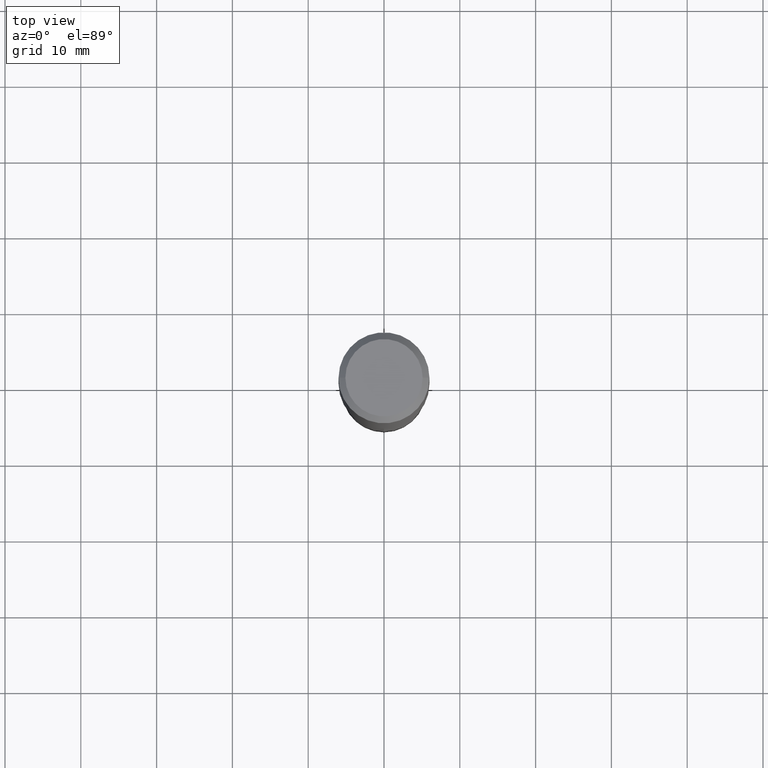
[diagram: clean part render]
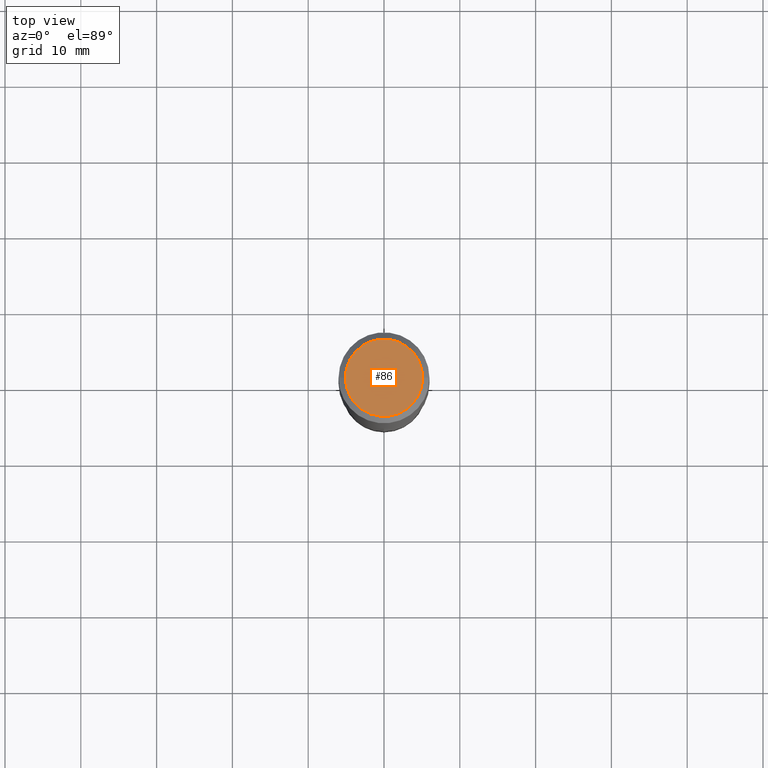
[diagram: same view with one face highlighted and labeled with its STEP entity id]
A machine part, top view. The second image highlights one B-rep face of the part: STEP entity #86.
In plain terms, the highlighted planar face has unit normal (0, -0, -1).
Its self-contained STEP definition (entity closure, byte-faithful):
#43 = DIRECTION ( 'NONE',  ( 1.000000000000000000, -6.982962677686266711E-15, 4.876140833081945105E-29 ) ) ;
#56 = CIRCLE ( 'NONE', #239, 0.2007700000000000040 ) ;
#71 = EDGE_CURVE ( 'NONE', #456, #421, #56, .T. ) ;
#86 = ADVANCED_FACE ( 'NONE', ( #220 ), #321, .F. ) ;
#115 = CARTESIAN_POINT ( 'NONE',  ( -1.001697619218023151E-46, 1.430158722866391908E-32, 4.096137381448114529E-18 ) ) ;
#157 = EDGE_CURVE ( 'NONE', #421, #456, #310, .T. ) ;
#168 = EDGE_LOOP ( 'NONE', ( #236, #271 ) ) ;
#182 = DIRECTION ( 'NONE',  ( -2.445468806185136597E-29, 3.491481338843145583E-15, 1.000000000000000000 ) ) ;
#212 = CARTESIAN_POINT ( 'NONE',  ( -1.001697619218023151E-46, 1.430158722866391908E-32, 4.096137381448114529E-18 ) ) ;
#220 = FACE_OUTER_BOUND ( 'NONE', #168, .T. ) ;
#236 = ORIENTED_EDGE ( 'NONE', *, *, #71, .T. ) ;
#239 = AXIS2_PLACEMENT_3D ( 'NONE', #212, #182, #359 ) ;
#249 = DIRECTION ( 'NONE',  ( 2.438088387897960049E-29, -3.491481338843145188E-15, -1.000000000000000000 ) ) ;
#271 = ORIENTED_EDGE ( 'NONE', *, *, #157, .T. ) ;
#280 = AXIS2_PLACEMENT_3D ( 'NONE', #115, #441, #43 ) ;
#310 = CIRCLE ( 'NONE', #280, 0.2007700000000000040 ) ;
#321 = PLANE ( 'NONE',  #356 ) ;
#326 = CARTESIAN_POINT ( 'NONE',  ( 0.2007700000000000040, -1.560767496960719869E-15, 4.096137381458473721E-18 ) ) ;
#356 = AXIS2_PLACEMENT_3D ( 'NONE', #467, #249, #400 ) ;
#359 = DIRECTION ( 'NONE',  ( 1.000000000000000000, -6.982962677686266711E-15, 4.876140833081945105E-29 ) ) ;
#400 = DIRECTION ( 'NONE',  ( -1.000000000000000000, 6.982962677686265922E-15, -4.876176775795935793E-29 ) ) ;
#421 = VERTEX_POINT ( 'NONE', #326 ) ;
#433 = CARTESIAN_POINT ( 'NONE',  ( -0.2007700000000000040, 1.463821008716676943E-15, 4.096137381438094301E-18 ) ) ;
#441 = DIRECTION ( 'NONE',  ( -2.445468806185136597E-29, 3.491481338843145583E-15, 1.000000000000000000 ) ) ;
#456 = VERTEX_POINT ( 'NONE', #433 ) ;
#467 = CARTESIAN_POINT ( 'NONE',  ( -5.008488096090115757E-47, 7.150793614331959538E-33, 2.048068690724057264E-18 ) ) ;